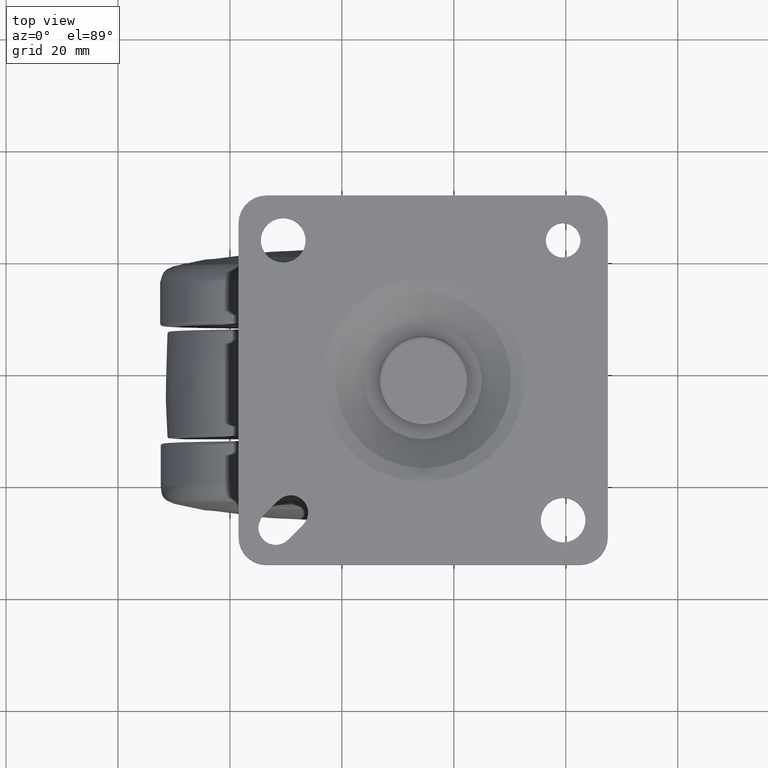
[diagram: clean part render]
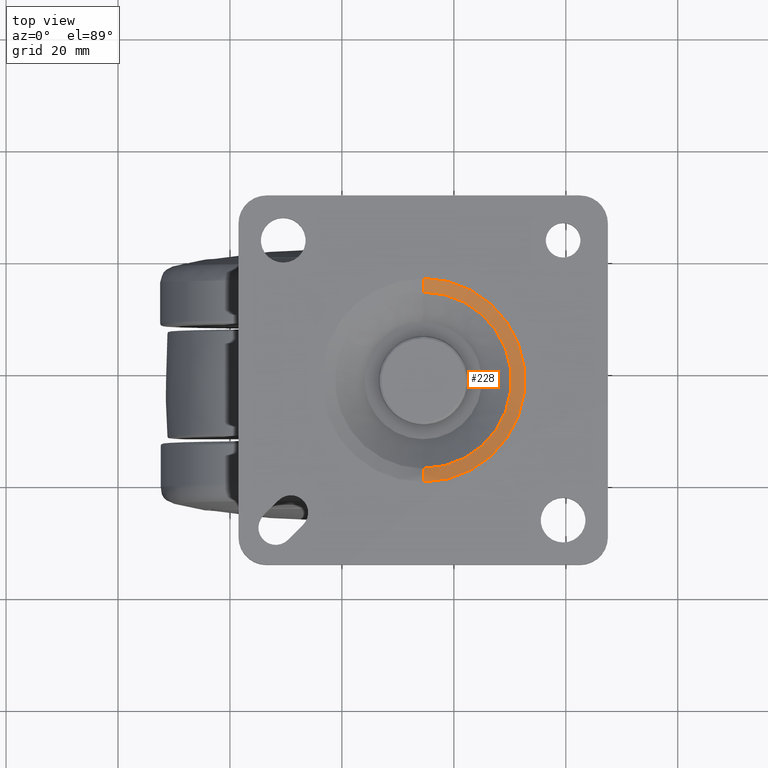
[diagram: same view with one face highlighted and labeled with its STEP entity id]
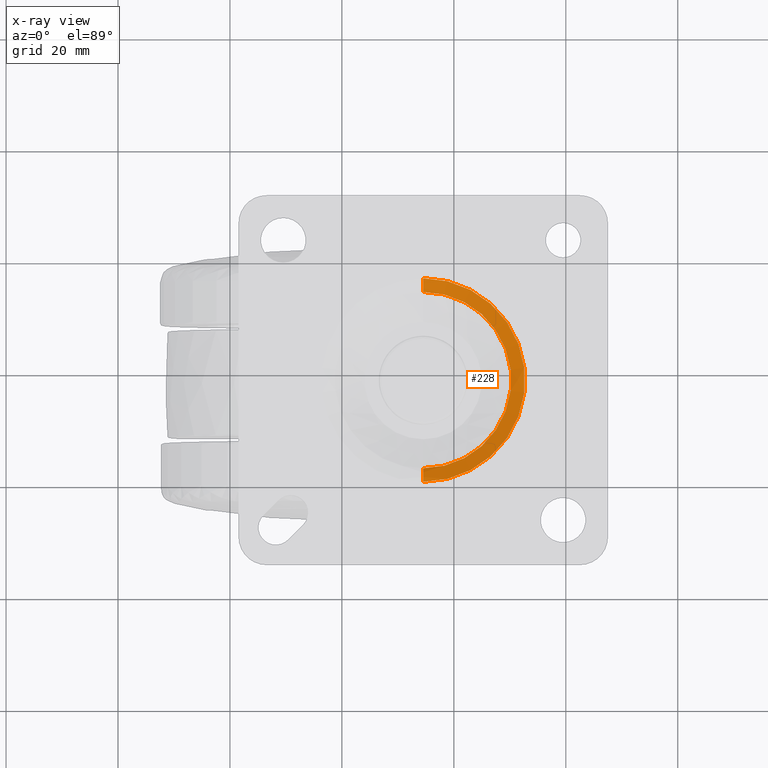
[diagram: x-ray of the same camera — body ghosted, the highlighted face saturated]
A machine part, top view. The second image highlights one B-rep face of the part: STEP entity #228.
The next image is the same camera in x-ray: the body ghosted, the highlighted face saturated — about 0% of this face is hidden behind the body in this view.
In plain terms, the highlighted face is a freeform B-spline surface patch.
Its self-contained STEP definition (entity closure, byte-faithful):
#228=ADVANCED_FACE('',(#1040),#1039,.T.);
#1039=( BOUNDED_SURFACE() B_SPLINE_SURFACE( 2,2,((#2929,#2930,#2931),(#2932,#2933,#2934),(#2935,#2936,#2937),(#2938,#2939,#2940),(#2941,#2942,#2943)), .UNSPECIFIED.,.F.,.F.,.F.) B_SPLINE_SURFACE_WITH_KNOTS((3,2,3),(3,3),(0.00000000000E+00,5.00000000000E-01,1.00000000000E+00),(0.00000000000E+00,1.00000000000E+00), .UNSPECIFIED. ) GEOMETRIC_REPRESENTATION_ITEM() RATIONAL_B_SPLINE_SURFACE(((1.00000000000E+00,7.91696109847E-01,1.00000000000E+00),(7.07106781187E-01,5.59813687912E-01,7.07106781187E-01),(1.00000000000E+00,7.91696109847E-01,1.00000000000E+00),(7.07106781187E-01,5.59813687912E-01,7.07106781187E-01),(1.00000000000E+00,7.91696109847E-01,1.00000000000E+00))) REPRESENTATION_ITEM('') SURFACE() );
#1040=FACE_OUTER_BOUND('',#2944,.T.);
#2929=CARTESIAN_POINT('',(-1.57376955510E-14,8.33215560614E-01,1.57502206510E+01));
#2930=CARTESIAN_POINT('',(-1.81794127044E-14,-1.05244367157E+00,1.81938810846E+01));
#2931=CARTESIAN_POINT('',(-2.06211298578E-14,8.33215560614E-01,2.06375415181E+01));
#2932=CARTESIAN_POINT('',(1.57502206510E+01,8.33215560614E-01,1.57502206510E+01));
#2933=CARTESIAN_POINT('',(1.81938810846E+01,-1.05244367157E+00,1.81938810846E+01));
#2934=CARTESIAN_POINT('',(2.06375415181E+01,8.33215560614E-01,2.06375415181E+01));
#2935=CARTESIAN_POINT('',(1.57502206510E+01,8.33215560614E-01,1.06907739167E-13));
#2936=CARTESIAN_POINT('',(1.81938810846E+01,-1.05244367157E+00,1.09499087367E-13));
#2937=CARTESIAN_POINT('',(2.06375415181E+01,8.33215560614E-01,1.12090435567E-13));
#2938=CARTESIAN_POINT('',(1.57502206510E+01,8.33215560614E-01,-1.57502206510E+01));
#2939=CARTESIAN_POINT('',(1.81938810846E+01,-1.05244367157E+00,-1.81938810846E+01));
#2940=CARTESIAN_POINT('',(2.06375415181E+01,8.33215560614E-01,-2.06375415181E+01));
#2941=CARTESIAN_POINT('',(1.76665412816E-14,8.33215560614E-01,-1.57502206510E+01));
#2942=CARTESIAN_POINT('',(2.04075205278E-14,-1.05244367157E+00,-1.81938810846E+01));
#2943=CARTESIAN_POINT('',(2.31484997740E-14,8.33215560614E-01,-2.06375415181E+01));
#2944=EDGE_LOOP('',(#6425,#6426,#6427,#6428));
#6425=ORIENTED_EDGE('',*,*,#6969,.F.);
#6426=ORIENTED_EDGE('',*,*,#6976,.T.);
#6427=ORIENTED_EDGE('',*,*,#6908,.F.);
#6428=ORIENTED_EDGE('',*,*,#6977,.F.);
#6908=EDGE_CURVE('',#7828,#7829,#7830,.T.);
#6969=EDGE_CURVE('',#8223,#8216,#8236,.T.);
#6976=EDGE_CURVE('',#8223,#7829,#8282,.T.);
#6977=EDGE_CURVE('',#8216,#7828,#8288,.T.);
#7828=VERTEX_POINT('',#9883);
#7829=VERTEX_POINT('',#9884);
#7830=CIRCLE('',#9888,1.81938810846E+01);
#8216=VERTEX_POINT('',#10129);
#8223=VERTEX_POINT('',#10132);
#8236=CIRCLE('',#10142,1.57502206510E+01);
#8282=(BOUNDED_CURVE() B_SPLINE_CURVE(2,(#10171,#10172,#10173),.UNSPECIFIED.,.F.,.F.) B_SPLINE_CURVE_WITH_KNOTS((3,3),(0.00000000000E+00,5.00000005960E-01),.UNSPECIFIED.) CURVE() GEOMETRIC_REPRESENTATION_ITEM() RATIONAL_B_SPLINE_CURVE((1.00000000000E+00,8.95848053682E-01,8.95848054923E-01)) REPRESENTATION_ITEM('') );
#8288=(BOUNDED_CURVE() B_SPLINE_CURVE(2,(#10174,#10175,#10176),.UNSPECIFIED.,.F.,.F.) B_SPLINE_CURVE_WITH_KNOTS((3,3),(0.00000000000E+00,4.99999990829E-01),.UNSPECIFIED.) CURVE() GEOMETRIC_REPRESENTATION_ITEM() RATIONAL_B_SPLINE_CURVE((7.50000000000E-01,6.71886042625E-01,6.71886041192E-01)) REPRESENTATION_ITEM('') );
#9883=CARTESIAN_POINT('',(-1.81793391187E-14,5.17492753825E-28,1.81938810846E+01));
#9884=CARTESIAN_POINT('',(1.95399252334E-14,-5.17492753825E-28,-1.81938810846E+01));
#9885=CARTESIAN_POINT('',(0.00000000000E+00,0.00000000000E+00,9.02056207508E-14));
#9886=DIRECTION('',(-3.30514048027E-30,1.00000000000E+00,-2.84432305245E-29));
#9887=DIRECTION('',(-1.12166135754E-15,2.84432305245E-29,1.00000000000E+00));
#9888=AXIS2_PLACEMENT_3D('',#9885,#9886,#9887);
#10129=CARTESIAN_POINT('',(-1.38088498204E-14,8.33215560614E-01,1.57502206510E+01));
#10132=CARTESIAN_POINT('',(1.59872115546E-14,8.33215560614E-01,-1.57502206510E+01));
#10139=CARTESIAN_POINT('',(0.00000000000E+00,8.33215560614E-01,8.32667268469E-14));
#10140=DIRECTION('',(3.30514048027E-30,-1.00000000000E+00,3.30249875474E-45));
#10141=DIRECTION('',(-9.99200722163E-16,-0.00000000000E+00,1.00000000000E+00));
#10142=AXIS2_PLACEMENT_3D('',#10139,#10140,#10141);
#10171=CARTESIAN_POINT('',(1.38088498204E-14,8.33215560614E-01,-1.57502206510E+01));
#10172=CARTESIAN_POINT('',(1.47555356731E-14,-1.10874830458E-08,-1.68300000144E+01));
#10173=CARTESIAN_POINT('',(1.59513049095E-14,3.72613838150E-15,-1.81938811171E+01));
#10174=CARTESIAN_POINT('',(-1.36187357687E-14,8.33215560614E-01,1.57502206510E+01));
#10175=CARTESIAN_POINT('',(-1.48715802856E-14,1.70601219389E-08,1.68299999779E+01));
#10176=CARTESIAN_POINT('',(-1.60282587375E-14,3.90689081885E-15,1.81938810345E+01));